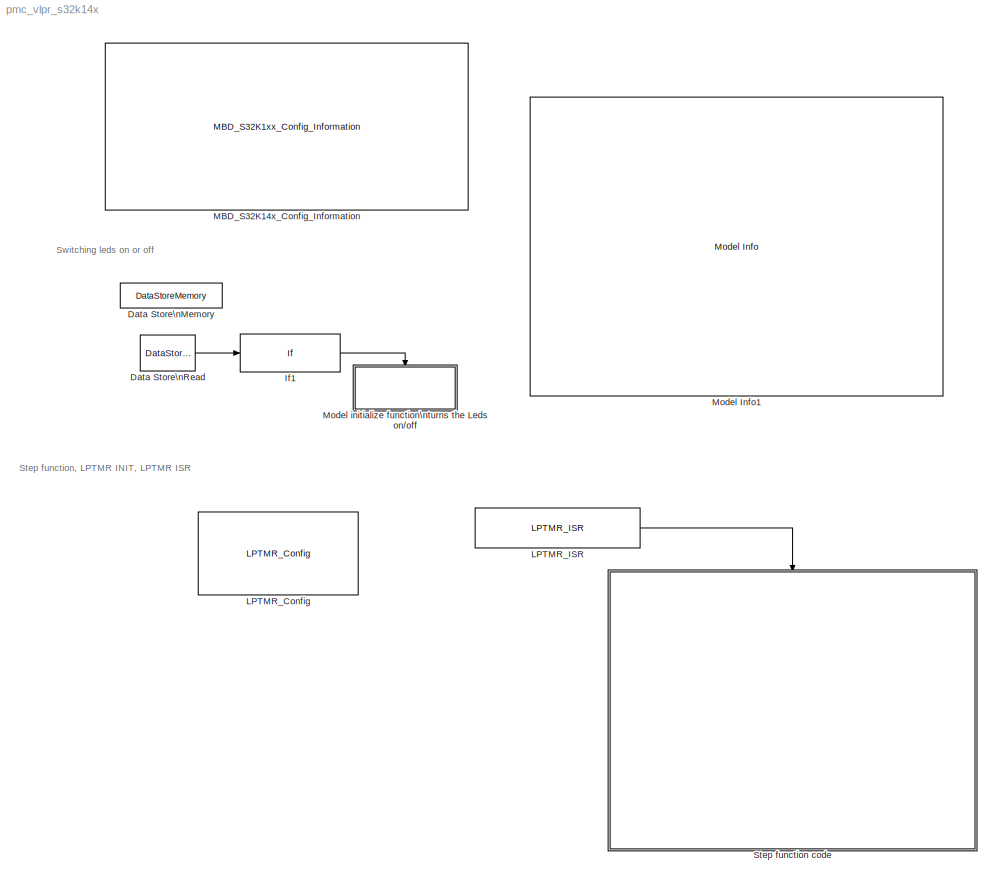
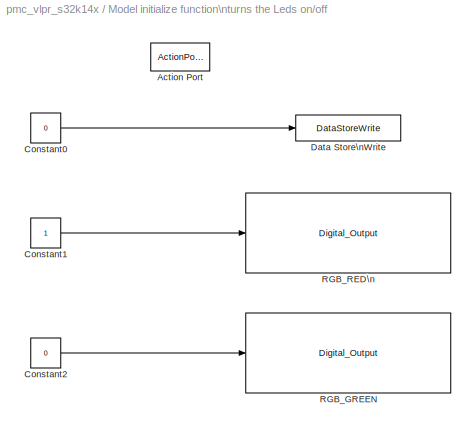
MODEL pmc_vlpr_s32k14x
KIND model
CONFIG InitFcn = mbd_s32k_consistency_checks(bdroot(gcs));
BLOCK [DataStoreMemory] Data Store\nMemory
  DataStoreName = init_flag
  InitialValue = 1
  OutDataTypeStr = boolean
  ReadBeforeWriteMsg = warning
  SID = 627
  ShowAdditionalParam = off
  WriteAfterReadMsg = warning
  WriteAfterWriteMsg = warning
BLOCK [DataStoreRead] Data Store\nRead
  DataStoreName = init_flag
  Ports = [0, 1]
  SID = 628
BLOCK [If] If1
  IfExpression = u1 == 1
  Ports = [1, 1]
  SID = 629
  ShowElse = off
BLOCK [Reference] LPTMR_Config  REF=mbd_s32k1xx_ec_toolbox/Core and System Blocks/LPTMR Blocks/LPTMR_Config
  Ports = []
  SID = 581
  SourceBlock = mbd_s32k1xx_ec_toolbox/Core and System Blocks/LPTMR Blocks/LPTMR_Config
  SourceType = lptmr_s32k_config
  bypass_prescaler = off
  compare_value = 1000
  compare_value_units = Microseconds
  enable_isr = on
  free_run = off
  input_clock = SIRC DIV2 clock
  pin_gpio = PTE11: [LPTMR0_ALT1 | Low Power Timer Input Channel]
  pin_polarity = Count pulse on rising edge
  pin_select = Count pulses from pin alternative 1
  pin_trgmux_source = Trigger function is disabled
  prescaler = Timer mode: prescaler 2, Glitch filter mode: invalid
  show_adv_opts = on
  start_counter = on
  work_mode = Time Counter mode
BLOCK [Reference] LPTMR_ISR  REF=mbd_s32k1xx_ec_toolbox/Core and System Blocks/LPTMR Blocks/LPTMR_ISR
  Ports = [0, 1]
  SID = 582
  SourceBlock = mbd_s32k1xx_ec_toolbox/Core and System Blocks/LPTMR Blocks/LPTMR_ISR
  SourceType = lptmr_s32k_isr
BLOCK [Reference] MBD_S32K14x_Config_Information  REF=mbd_s32k1xx_ec_toolbox/MBD_S32K1xx_Config_Information
  ADC_PcrCheckEnDis = on
  AMMCLIB_PcrCheckEnDis = on
  CMP_PcrCheckEnDis = on
  CSEc_PcrCheckEnDis = on
  ConfigParams_PcrCheckEnDis = on
  FM_PcrCheckEnDis = on
  FTM_Dual_Edge_Inputs_PcrCheckEnDis = on
  FTM_Hall_Sensor_Inputs_PcrCheckEnDis = on
  FTM_Input_Edge_Inputs_PcrCheckEnDis = on
  FTM_PWM_PcrCheckEnDis = on
  FTM_Quadrature_Inputs_PcrCheckEnDis = on
  FlexCAN_PcrCheckEnDis = on
  FlexIO_PcrCheckEnDis = on
  GPIO_InputPcrCheckEnDis = on
  GPIO_OutputPcrCheckEnDis = on
  LIN_PcrCheckEnDis = on
  LPI2C_PcrCheckEnDis = on
  LPSPI_PcrCheckEnDis = on
  LPTMR_PcrCheckEnDis = on
  LPUART_PcrCheckEnDis = on
  ModelRef_PcrCheckEnDis = on
  PDB0_PcrCheckEnDis = on
  PIT_PcrCheckEnDis = on
  Ports = []
  Profile_PcrCheckEnDis = on
  RTC_PcrCheckEnDis = on
  SBC_PcrCheckEnDis = on
  SID = 38
  SourceBlock = mbd_s32k1xx_ec_toolbox/MBD_S32K1xx_Config_Information
  SourceType = MBDTBX_EC_S32K
  WDOG_PcrCheckEnDis = on
  config_params = []
  disp_str = Target : S32K144-64KB_SRAM\nPackage : 100-pin\nSystem clock : 80 MHz\nXTAL clock : External 8 MHz\nCompiler : GCC\nTarget Type : FLASH\nDownload Code after build : (OpenSDA: D)\nStep Tick Interrupt Priority : 10
  ds_import_enable = on
  eDMA_PcrCheckEnDis = on
  gcc_target_assemble_opts = -mcpu=cortex-m4 -mthumb -mfloat-abi=hard -mfpu=fpv4-sp-d16 -g
  gcc_target_compile_opts = -mcpu=cortex-m4 -mthumb -mfloat-abi=hard -mfpu=fpv4-sp-d16 -O1 -g -gstrict-dwarf
  gcc_target_default_lcf = on
  gcc_target_link_opts = -mcpu=cortex-m4 -mthumb -mfloat-abi=hard -mfpu=fpv4-sp-d16
  gcc_target_user_lcf = S32K144_64_flash.ld
  ghs_target_assemble_opts = -cpu=cortexm4f -fpu=vfpv4_d16
  ghs_target_compile_opts = -cpu=cortexm4f -thumb -DARM_MATH_CM4 -fpu=vfpv4_d16 -fsingle -Ogeneral -Wundef -Wimplicit-int -Wshadow -Wtrigraphs --no_commons --gnu_asm -gnu99 -gdwarf-2 -G
  ghs_target_default_lcf = on
  ghs_target_link_opts = -cpu=cortexm4f -thumb -fpu=vfpv4_d16
  ghs_target_user_lcf = S32K144_64_flash.ld
  iar_target_assemble_opts = --cpu Cortex-M4F --thumb --fpu VFPv4_sp
  iar_target_compile_opts = --cpu=Cortex-M4F --thumb --fpu=VFPv4_sp -Ol -e --debug --dlib_config normal
  iar_target_default_lcf = on
  iar_target_link_opts = --no_exceptions --vfe --inline
  iar_target_user_lcf = S32K144_64_flash.icf
  mbdt_ver = 0
  mcu_steptick_prio = 15
  mcu_steptick_timer = LPIT Channel 0
  mcu_system_clock_freq = 80
  mcu_target_name = S32K144
  mcu_target_package = 100-LQFP
  mcu_target_sram_size = 64KB
  mcu_xtal_freq = External 8
  pil_download_enable = off
  pil_download_rate = 57600
  pil_opensda_drive = Custom
  pil_opensda_drive_custom = D
  pil_uart_instance = 0
  pil_uart_rx = PTA2: [LPUART0_RX | Receive]
  pil_uart_tx = PTA3: [LPUART0_TX | Transmit]
  rbl_com_port = Custom
  rbl_com_port_custom = COM1
  rbl_download_enable = on
  rbl_download_interface = OpenSDA
  rbl_restart_request = off
  rbl_start_delay = 5000000
  target_compiler = GCC
  target_memory = FLASH
BLOCK [Reference] Model Info1  REF=simulink/Model-Wide\nUtilities/Model Info
  DisplayStringWithTags = Model Name: %<ModelName>\n\nDescription: %<Description>
  Frame = off
  HorizontalTextAlignment = Left
  LeftAlignmentValue = 0.02
  MaskDisplayString = Model Name: pmc_vlpr_s32k14x\\n\\nDescription: This model demonstrates the \"VLPR\" functionality by setting the \\nprocessor to run in the Very low power run (VLPR) mode. When the SW3 button is \\npressed, the processor runs into the VLPR mode. To exit the VLPR mode to RUN mode\\nSW2 button must be pressed. \\n\\nAttention: The VLPR mode  disables most of the clocks. Using LPIT timer as interrupt...<+891ch>
  Ports = []
  SID = 558
  SourceBlock = simulink/Model-Wide\nUtilities/Model Info
  SourceProductBaseCode = SL
  SourceProductName = Simulink
  SourceType = CMBlock
BLOCK [SubSystem] Model initialize function\nturns the Leds on//off
  Ports = [0, 0, 0, 0, 0, 0, 0, 1]
  RequestExecContextInheritance = off
  SID = 630
  TreatAsAtomicUnit = on
  Variant = off
BLOCK [ActionPort] Model initialize function\nturns the Leds on//off/Action Port
  SID = 631
BLOCK [Constant] Model initialize function\nturns the Leds on//off/Constant0
  OutDataTypeStr = boolean
  SID = 632
  Value = 0
BLOCK [Constant] Model initialize function\nturns the Leds on//off/Constant1
  OutDataTypeStr = boolean
  SID = 633
BLOCK [Constant] Model initialize function\nturns the Leds on//off/Constant2
  OutDataTypeStr = boolean
  SID = 634
  Value = 0
BLOCK [DataStoreWrite] Model initialize function\nturns the Leds on//off/Data Store\nWrite
  DataStoreName = init_flag
  Ports = [1]
  SID = 635
BLOCK [Reference] Model initialize function\nturns the Leds on//off/RGB_GREEN  REF=mbd_s32k1xx_ec_toolbox/GPIO Blocks/Digital_Output
  Ports = [1]
  SID = 636
  SourceBlock = mbd_s32k1xx_ec_toolbox/GPIO Blocks/Digital_Output
  SourceType = gpio_s32k_output
  drive_strength = Low
  gpio_pin = PTD16: [PTD16 | Port D I/O]
  init_val = Low
BLOCK [Reference] Model initialize function\nturns the Leds on//off/RGB_RED\n  REF=mbd_s32k1xx_ec_toolbox/GPIO Blocks/Digital_Output
  Ports = [1]
  SID = 637
  SourceBlock = mbd_s32k1xx_ec_toolbox/GPIO Blocks/Digital_Output
  SourceType = gpio_s32k_output
  drive_strength = Low
  gpio_pin = PTD15: [PTD15 | Port D I/O]
  init_val = Low
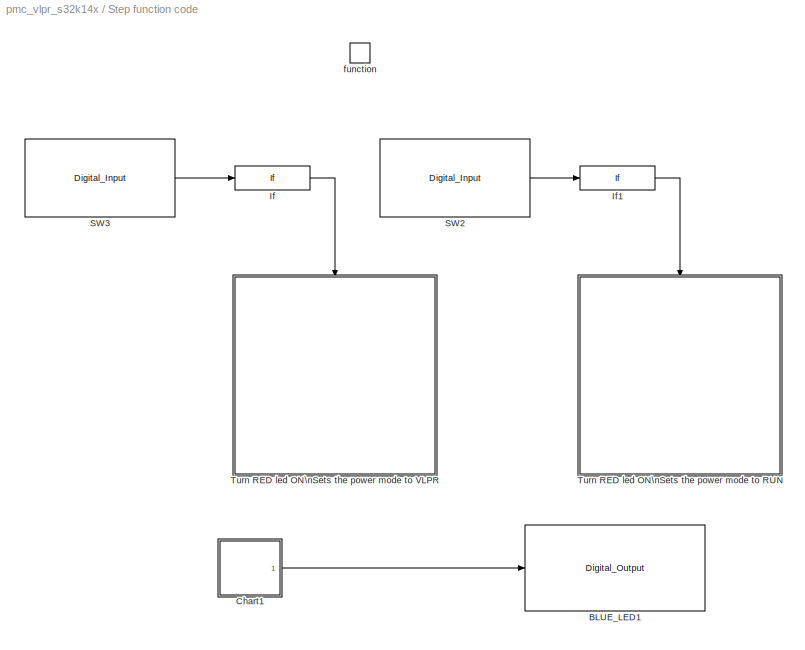
BLOCK [SubSystem] Step function code
  Ports = [0, 0, 0, 1]
  RequestExecContextInheritance = off
  SID = 579
  Variant = off
BLOCK [Reference] Step function code/BLUE_LED1  REF=mbd_s32k1xx_ec_toolbox/GPIO Blocks/Digital_Output
  Ports = [1]
  SID = 598
  SourceBlock = mbd_s32k1xx_ec_toolbox/GPIO Blocks/Digital_Output
  SourceType = gpio_s32k_output
  drive_strength = Low
  gpio_pin = PTD0: [PTD0 | Port D I/O]
  init_val = Low
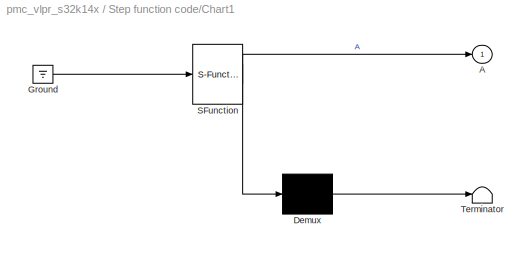
BLOCK [SubSystem] Step function code/Chart1
  ErrorFcn = Stateflow.Translate.translate
  PermitHierarchicalResolution = ExplicitOnly
  Ports = [0, 1]
  RequestExecContextInheritance = off
  SFBlockType = Chart
  SID = 599
  TreatAsAtomicUnit = on
  Variant = off
BLOCK [Outport] Step function code/Chart1/ A
  IconDisplay = Port number
  SID = 599::6
BLOCK [Demux] Step function code/Chart1/ Demux 
  Outputs = 1
  Ports = [1, 1]
  SID = 599::36
BLOCK [Ground] Step function code/Chart1/ Ground 
  SID = 599::38
BLOCK [S-Function] Step function code/Chart1/ SFunction 
  EnableBusSupport = off
  FunctionName = sf_sfun
  PortCounts = [1 2]
  Ports = [1, 2]
  SFcnIsStateOwnerBlock = off
  SFunctionDeploymentMode = off
  SID = 599::35
  Tag = Stateflow S-Function pmc_vlpr_s32k14x 1
BLOCK [Terminator] Step function code/Chart1/ Terminator 
  SID = 599::37
BLOCK [If] Step function code/If
  IfExpression = u1 == 1
  Ports = [1, 1]
  SID = 613
  ShowElse = off
BLOCK [If] Step function code/If1
  IfExpression = u1 == 1
  Ports = [1, 1]
  SID = 621
  ShowElse = off
BLOCK [Reference] Step function code/SW2  REF=mbd_s32k1xx_ec_toolbox/GPIO Blocks/Digital_Input
  Ports = [0, 1]
  SID = 622
  SourceBlock = mbd_s32k1xx_ec_toolbox/GPIO Blocks/Digital_Input
  SourceType = gpio_s32k_input
  gpio_pin = PTC12: [PTC12 | Port C I/O]
  passive_filter = on
  pull_resistor = None
BLOCK [Reference] Step function code/SW3  REF=mbd_s32k1xx_ec_toolbox/GPIO Blocks/Digital_Input
  Ports = [0, 1]
  SID = 614
  SourceBlock = mbd_s32k1xx_ec_toolbox/GPIO Blocks/Digital_Input
  SourceType = gpio_s32k_input
  gpio_pin = PTC13: [PTC13 | Port C I/O]
  passive_filter = on
  pull_resistor = None
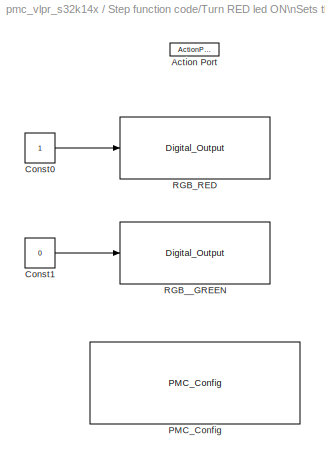
BLOCK [SubSystem] Step function code/Turn RED led ON\nSets the power mode to RUN
  Ports = [0, 0, 0, 0, 0, 0, 0, 1]
  RequestExecContextInheritance = off
  SID = 616
  TreatAsAtomicUnit = on
  Variant = off
BLOCK [ActionPort] Step function code/Turn RED led ON\nSets the power mode to RUN/Action Port
  SID = 617
BLOCK [Constant] Step function code/Turn RED led ON\nSets the power mode to RUN/Const0
  OutDataTypeStr = boolean
  SID = 618
BLOCK [Constant] Step function code/Turn RED led ON\nSets the power mode to RUN/Const1
  OutDataTypeStr = boolean
  SID = 623
  Value = 0
BLOCK [Reference] Step function code/Turn RED led ON\nSets the power mode to RUN/PMC_Config  REF=mbd_s32k1xx_ec_toolbox/Core and System Blocks/PMC Blocks/PMC_Config
  Ports = []
  SID = 619
  SourceBlock = mbd_s32k1xx_ec_toolbox/Core and System Blocks/PMC Blocks/PMC_Config
  SourceType = pmc_s32k_config
  callback_after = off
  callback_before = off
  callback_before_after = off
  power_mode = Normal Operating (RUN)
  show_adv_opts = off
  sleep_on_exit = off
BLOCK [Reference] Step function code/Turn RED led ON\nSets the power mode to RUN/RGB_RED  REF=mbd_s32k1xx_ec_toolbox/GPIO Blocks/Digital_Output
  Ports = [1]
  SID = 620
  SourceBlock = mbd_s32k1xx_ec_toolbox/GPIO Blocks/Digital_Output
  SourceType = gpio_s32k_output
  drive_strength = Low
  gpio_pin = PTD15: [PTD15 | Port D I/O]
  init_val = Low
BLOCK [Reference] Step function code/Turn RED led ON\nSets the power mode to RUN/RGB__GREEN  REF=mbd_s32k1xx_ec_toolbox/GPIO Blocks/Digital_Output
  Ports = [1]
  SID = 624
  SourceBlock = mbd_s32k1xx_ec_toolbox/GPIO Blocks/Digital_Output
  SourceType = gpio_s32k_output
  drive_strength = Low
  gpio_pin = PTD16: [PTD16 | Port D I/O]
  init_val = Low
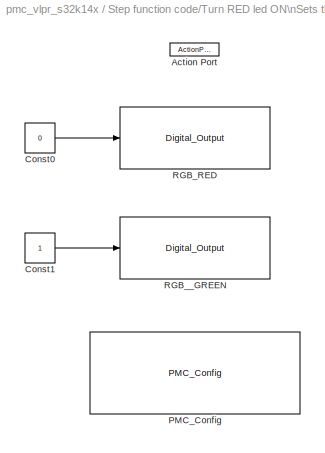
BLOCK [SubSystem] Step function code/Turn RED led ON\nSets the power mode to VLPR
  Ports = [0, 0, 0, 0, 0, 0, 0, 1]
  RequestExecContextInheritance = off
  SID = 11
  TreatAsAtomicUnit = on
  Variant = off
BLOCK [ActionPort] Step function code/Turn RED led ON\nSets the power mode to VLPR/Action Port
  SID = 615
BLOCK [Constant] Step function code/Turn RED led ON\nSets the power mode to VLPR/Const0
  OutDataTypeStr = boolean
  SID = 552
  Value = 0
BLOCK [Constant] Step function code/Turn RED led ON\nSets the power mode to VLPR/Const1
  OutDataTypeStr = boolean
  SID = 625
BLOCK [Reference] Step function code/Turn RED led ON\nSets the power mode to VLPR/PMC_Config  REF=mbd_s32k1xx_ec_toolbox/Core and System Blocks/PMC Blocks/PMC_Config
  Ports = []
  SID = 568
  SourceBlock = mbd_s32k1xx_ec_toolbox/Core and System Blocks/PMC Blocks/PMC_Config
  SourceType = pmc_s32k_config
  callback_after = off
  callback_before = off
  callback_before_after = off
  power_mode = Very Low Power Run (VLPR)
  show_adv_opts = off
  sleep_on_exit = off
BLOCK [Reference] Step function code/Turn RED led ON\nSets the power mode to VLPR/RGB_RED  REF=mbd_s32k1xx_ec_toolbox/GPIO Blocks/Digital_Output
  Ports = [1]
  SID = 557
  SourceBlock = mbd_s32k1xx_ec_toolbox/GPIO Blocks/Digital_Output
  SourceType = gpio_s32k_output
  drive_strength = Low
  gpio_pin = PTD15: [PTD15 | Port D I/O]
  init_val = Low
BLOCK [Reference] Step function code/Turn RED led ON\nSets the power mode to VLPR/RGB__GREEN  REF=mbd_s32k1xx_ec_toolbox/GPIO Blocks/Digital_Output
  Ports = [1]
  SID = 626
  SourceBlock = mbd_s32k1xx_ec_toolbox/GPIO Blocks/Digital_Output
  SourceType = gpio_s32k_output
  drive_strength = Low
  gpio_pin = PTD16: [PTD16 | Port D I/O]
  init_val = Low
BLOCK [TriggerPort] Step function code/function
  Ports = []
  SID = 584
  StatesWhenEnabling = held
  TriggerType = function-call
  VariantControl = Variant
ANNOTATION (root): Step function, LPTMR INIT, LPTMR ISR
ANNOTATION (root): Switching leds on or off
LINE Data Store\nRead:1 -> If1:1
LINE If1:1 -> Model initialize function\nturns the Leds on//off:ifaction
LINE LPTMR_ISR:1 -> Step function code:trigger
LINE Model initialize function\nturns the Leds on//off/Constant0:1 -> Model initialize function\nturns the Leds on//off/Data Store\nWrite:1
LINE Model initialize function\nturns the Leds on//off/Constant1:1 -> Model initialize function\nturns the Leds on//off/RGB_RED\n:1
LINE Model initialize function\nturns the Leds on//off/Constant2:1 -> Model initialize function\nturns the Leds on//off/RGB_GREEN:1
LINE Step function code/Chart1/ Demux :1 -> Step function code/Chart1/ Terminator :1
LINE Step function code/Chart1/ Ground :1 -> Step function code/Chart1/ SFunction :1
LINE Step function code/Chart1/ SFunction :1 -> Step function code/Chart1/ Demux :1
LINE Step function code/Chart1/ SFunction :2 -> Step function code/Chart1/ A:1
LINE Step function code/Chart1:1 -> Step function code/BLUE_LED1:1
LINE Step function code/If1:1 -> Step function code/Turn RED led ON\nSets the power mode to RUN:ifaction
LINE Step function code/If:1 -> Step function code/Turn RED led ON\nSets the power mode to VLPR:ifaction
LINE Step function code/SW2:1 -> Step function code/If1:1
LINE Step function code/SW3:1 -> Step function code/If:1
LINE Step function code/Turn RED led ON\nSets the power mode to RUN/Const0:1 -> Step function code/Turn RED led ON\nSets the power mode to RUN/RGB_RED:1
LINE Step function code/Turn RED led ON\nSets the power mode to RUN/Const1:1 -> Step function code/Turn RED led ON\nSets the power mode to RUN/RGB__GREEN:1
LINE Step function code/Turn RED led ON\nSets the power mode to VLPR/Const0:1 -> Step function code/Turn RED led ON\nSets the power mode to VLPR/RGB_RED:1
LINE Step function code/Turn RED led ON\nSets the power mode to VLPR/Const1:1 -> Step function code/Turn RED led ON\nSets the power mode to VLPR/RGB__GREEN:1
CHART Step function code/Chart1 states=2 transitions=5
  STATE_LABEL 'A\\nentry: cnt = cnt +1;'
  STATE_LABEL 'A1\\nentry: cnt = cnt - 1;'
